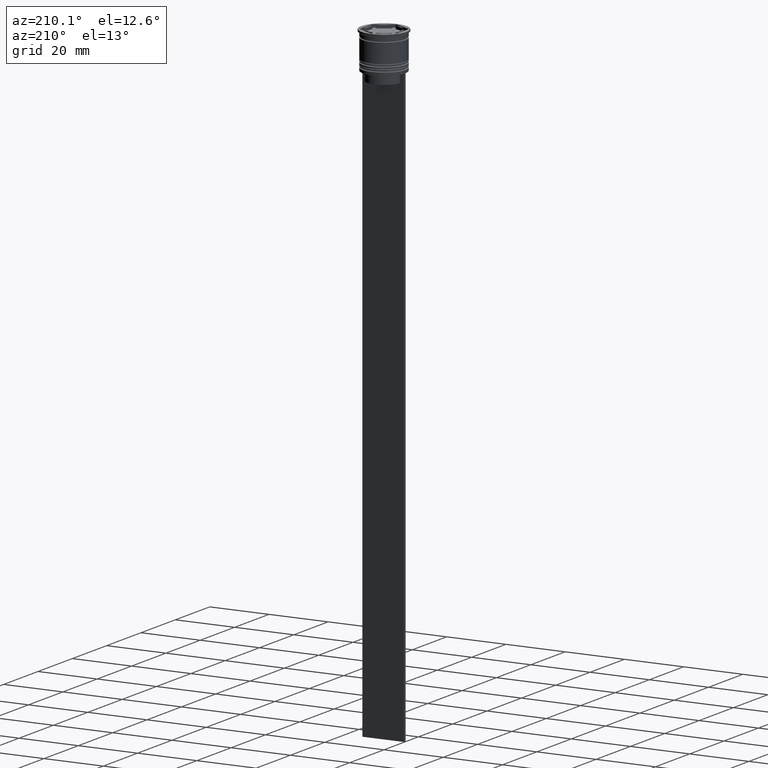
[diagram: clean part render]
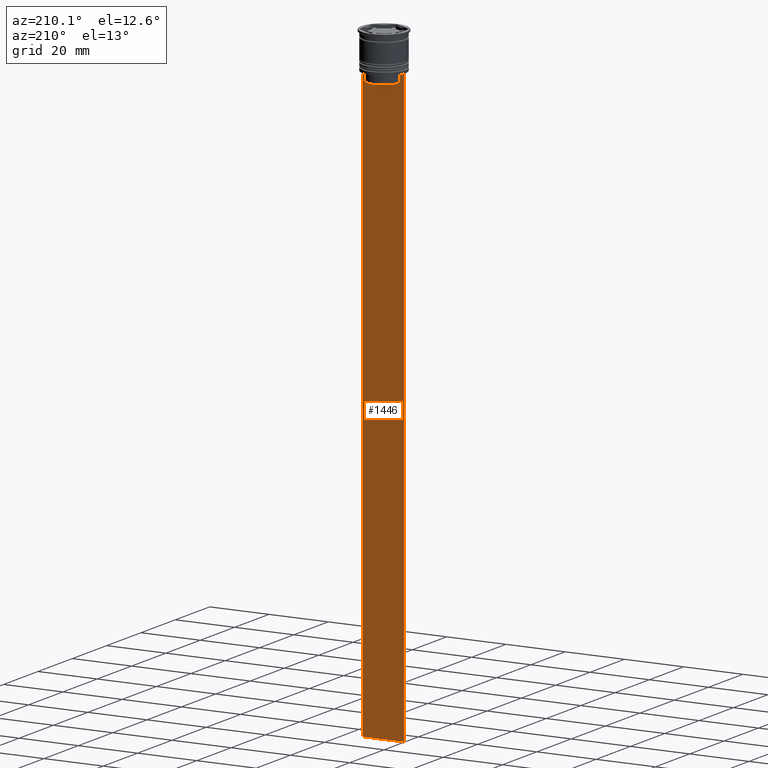
[diagram: same view with one face highlighted and labeled with its STEP entity id]
A machine part, auxiliary view. The second image highlights one B-rep face of the part: STEP entity #1446.
In plain terms, the highlighted planar face has unit normal (0, -1, -0).
Its self-contained STEP definition (entity closure, byte-faithful):
#46 = DIRECTION ( 'NONE',  ( 1.000000000000000000, 0.000000000000000000, 0.000000000000000000 ) ) ;
#48 = EDGE_CURVE ( 'NONE', #1574, #325, #1489, .T. ) ;
#65 = DIRECTION ( 'NONE',  ( 0.000000000000000000, 0.000000000000000000, -1.000000000000000000 ) ) ;
#69 = ORIENTED_EDGE ( 'NONE', *, *, #550, .T. ) ;
#125 = CARTESIAN_POINT ( 'NONE',  ( 5.627832620112292794, 0.4999999999999978351, -13.00000000000000000 ) ) ;
#131 = CARTESIAN_POINT ( 'NONE',  ( 5.962396079681187011, 0.4999999999999978351, -12.66669137279835411 ) ) ;
#188 = CARTESIAN_POINT ( 'NONE',  ( -5.627832620112292794, 0.4999999999999978351, -13.00000000000000000 ) ) ;
#199 = VECTOR ( 'NONE', #2325, 1000.000000000000000 ) ;
#209 = B_SPLINE_CURVE_WITH_KNOTS ( 'NONE', 3,
 ( #2110, #1413, #131, #1930 ),
 .UNSPECIFIED., .F., .F.,
 ( 4, 4 ),
 ( 0.02651134470867373347, 0.02721991123504337307 ),
 .UNSPECIFIED. ) ;
#252 = DIRECTION ( 'NONE',  ( 0.000000000000000000, 0.000000000000000000, -1.000000000000000000 ) ) ;
#257 = EDGE_CURVE ( 'NONE', #312, #1981, #585, .T. ) ;
#274 = DIRECTION ( 'NONE',  ( -1.000000000000000000, 0.000000000000000000, 0.000000000000000000 ) ) ;
#275 = CARTESIAN_POINT ( 'NONE',  ( 0.000000000000000000, 0.4999999999999978351, -15.50000000000000000 ) ) ;
#301 = EDGE_CURVE ( 'NONE', #1981, #1388, #2096, .T. ) ;
#312 = VERTEX_POINT ( 'NONE', #653 ) ;
#325 = VERTEX_POINT ( 'NONE', #1907 ) ;
#337 = CARTESIAN_POINT ( 'NONE',  ( -5.627832620112292794, 0.4999999999999978351, -15.50000000000000000 ) ) ;
#354 = VECTOR ( 'NONE', #499, 1000.000000000000000 ) ;
#407 = DIRECTION ( 'NONE',  ( 0.000000000000000000, 0.000000000000000000, -1.000000000000000000 ) ) ;
#470 = EDGE_LOOP ( 'NONE', ( #489, #2038, #69, #1364, #959, #2173, #1912, #597, #640, #938 ) ) ;
#476 = CARTESIAN_POINT ( 'NONE',  ( 7.000000000000012434, 0.4999999999999978351, -212.5000000000000284 ) ) ;
#489 = ORIENTED_EDGE ( 'NONE', *, *, #2163, .T. ) ;
#499 = DIRECTION ( 'NONE',  ( 1.000000000000000000, 0.000000000000000000, 0.000000000000000000 ) ) ;
#549 = CARTESIAN_POINT ( 'NONE',  ( 5.627832620112292794, 0.4999999999999978351, -15.50000000000000000 ) ) ;
#550 = EDGE_CURVE ( 'NONE', #325, #865, #906, .T. ) ;
#585 = LINE ( 'NONE', #1302, #1776 ) ;
#597 = ORIENTED_EDGE ( 'NONE', *, *, #257, .T. ) ;
#609 = VECTOR ( 'NONE', #2044, 1000.000000000000000 ) ;
#640 = ORIENTED_EDGE ( 'NONE', *, *, #301, .T. ) ;
#653 = CARTESIAN_POINT ( 'NONE',  ( 7.000000000000012434, 0.4999999999999978351, -12.50000000000000000 ) ) ;
#707 = CARTESIAN_POINT ( 'NONE',  ( -6.129641098791995368, 0.4999999999999978351, -12.50000000000000000 ) ) ;
#808 = VERTEX_POINT ( 'NONE', #125 ) ;
#810 = CARTESIAN_POINT ( 'NONE',  ( -6.999999999999987566, 0.4999999999999980571, -12.50000000000000000 ) ) ;
#832 = VECTOR ( 'NONE', #274, 1000.000000000000000 ) ;
#865 = VERTEX_POINT ( 'NONE', #337 ) ;
#879 = VECTOR ( 'NONE', #252, 1000.000000000000000 ) ;
#906 = LINE ( 'NONE', #2176, #609 ) ;
#933 = LINE ( 'NONE', #1079, #199 ) ;
#938 = ORIENTED_EDGE ( 'NONE', *, *, #1416, .F. ) ;
#959 = ORIENTED_EDGE ( 'NONE', *, *, #1379, .T. ) ;
#1000 = CARTESIAN_POINT ( 'NONE',  ( 6.129641098791995368, 0.4999999999999978351, -12.50000000000000000 ) ) ;
#1075 = CARTESIAN_POINT ( 'NONE',  ( 7.000000000000012434, 0.4999999999999978351, -12.50000000000000000 ) ) ;
#1078 = CARTESIAN_POINT ( 'NONE',  ( -5.962396146966409738, 0.4999999999999978351, -12.66669130573587054 ) ) ;
#1079 = CARTESIAN_POINT ( 'NONE',  ( 5.627832620112292794, 0.4999999999999978351, 0.000000000000000000 ) ) ;
#1098 = DIRECTION ( 'NONE',  ( 1.000000000000000000, 0.000000000000000000, 0.000000000000000000 ) ) ;
#1149 = PLANE ( 'NONE',  #1976 ) ;
#1204 = VECTOR ( 'NONE', #1098, 1000.000000000000000 ) ;
#1219 = EDGE_CURVE ( 'NONE', #808, #2075, #209, .T. ) ;
#1302 = CARTESIAN_POINT ( 'NONE',  ( 7.000000000000012434, 0.4999999999999978351, 1.535668847618198329 ) ) ;
#1303 = CARTESIAN_POINT ( 'NONE',  ( 7.000000000000012434, 0.4999999999999978351, 1.535668847618198329 ) ) ;
#1348 = LINE ( 'NONE', #1872, #879 ) ;
#1364 = ORIENTED_EDGE ( 'NONE', *, *, #1530, .T. ) ;
#1379 = EDGE_CURVE ( 'NONE', #1684, #808, #933, .T. ) ;
#1388 = VERTEX_POINT ( 'NONE', #1809 ) ;
#1413 = CARTESIAN_POINT ( 'NONE',  ( 5.795128760752291441, 0.4999999999999978351, -12.83336023406855020 ) ) ;
#1416 = EDGE_CURVE ( 'NONE', #1579, #1388, #1348, .T. ) ;
#1446 = ADVANCED_FACE ( 'NONE', ( #1718 ), #1149, .F. ) ;
#1489 = B_SPLINE_CURVE_WITH_KNOTS ( 'NONE', 3,
 ( #707, #1078, #2015, #188 ),
 .UNSPECIFIED., .F., .F.,
 ( 4, 4 ),
 ( 0.01045365750109871796, 0.01116204421161398619 ),
 .UNSPECIFIED. ) ;
#1530 = EDGE_CURVE ( 'NONE', #865, #1684, #1892, .T. ) ;
#1535 = CARTESIAN_POINT ( 'NONE',  ( 7.000000000000012434, 0.4999999999999978351, -212.5000000000000284 ) ) ;
#1574 = VERTEX_POINT ( 'NONE', #1771 ) ;
#1579 = VERTEX_POINT ( 'NONE', #810 ) ;
#1584 = EDGE_CURVE ( 'NONE', #2075, #312, #2119, .T. ) ;
#1684 = VERTEX_POINT ( 'NONE', #549 ) ;
#1693 = DIRECTION ( 'NONE',  ( 0.000000000000000000, -1.000000000000000000, -0.000000000000000000 ) ) ;
#1718 = FACE_OUTER_BOUND ( 'NONE', #470, .T. ) ;
#1766 = LINE ( 'NONE', #1075, #1204 ) ;
#1771 = CARTESIAN_POINT ( 'NONE',  ( -6.129641098791995368, 0.4999999999999978351, -12.50000000000000000 ) ) ;
#1776 = VECTOR ( 'NONE', #407, 1000.000000000000000 ) ;
#1809 = CARTESIAN_POINT ( 'NONE',  ( -6.999999999999987566, 0.4999999999999978351, -212.5000000000000284 ) ) ;
#1872 = CARTESIAN_POINT ( 'NONE',  ( -6.999999999999987566, 0.4999999999999978351, 1.535668847618198329 ) ) ;
#1892 = LINE ( 'NONE', #275, #1940 ) ;
#1907 = CARTESIAN_POINT ( 'NONE',  ( -5.627832620112292794, 0.4999999999999978351, -13.00000000000000000 ) ) ;
#1912 = ORIENTED_EDGE ( 'NONE', *, *, #1584, .T. ) ;
#1930 = CARTESIAN_POINT ( 'NONE',  ( 6.129641098791995368, 0.4999999999999978351, -12.50000000000000000 ) ) ;
#1940 = VECTOR ( 'NONE', #46, 1000.000000000000000 ) ;
#1976 = AXIS2_PLACEMENT_3D ( 'NONE', #1303, #1693, #65 ) ;
#1981 = VERTEX_POINT ( 'NONE', #1535 ) ;
#2015 = CARTESIAN_POINT ( 'NONE',  ( -5.795128834036803234, 0.4999999999999978351, -12.83336016107156574 ) ) ;
#2038 = ORIENTED_EDGE ( 'NONE', *, *, #48, .T. ) ;
#2044 = DIRECTION ( 'NONE',  ( 0.000000000000000000, 0.000000000000000000, -1.000000000000000000 ) ) ;
#2075 = VERTEX_POINT ( 'NONE', #1000 ) ;
#2096 = LINE ( 'NONE', #476, #832 ) ;
#2110 = CARTESIAN_POINT ( 'NONE',  ( 5.627832620112292794, 0.4999999999999978351, -13.00000000000000000 ) ) ;
#2119 = LINE ( 'NONE', #2290, #354 ) ;
#2163 = EDGE_CURVE ( 'NONE', #1579, #1574, #1766, .T. ) ;
#2173 = ORIENTED_EDGE ( 'NONE', *, *, #1219, .T. ) ;
#2176 = CARTESIAN_POINT ( 'NONE',  ( -5.627832620112292794, 0.4999999999999978351, 0.000000000000000000 ) ) ;
#2290 = CARTESIAN_POINT ( 'NONE',  ( 7.000000000000012434, 0.4999999999999978351, -12.50000000000000000 ) ) ;
#2325 = DIRECTION ( 'NONE',  ( -0.000000000000000000, -0.000000000000000000, 1.000000000000000000 ) ) ;